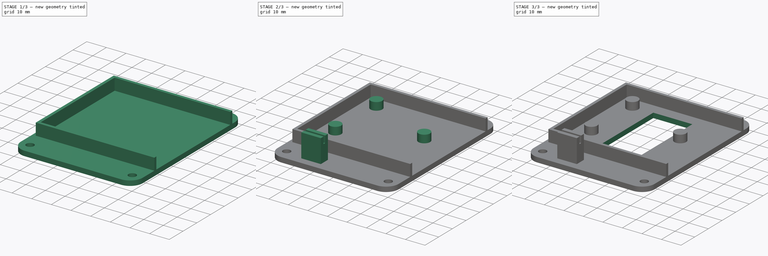
[diagram: build sequence overview — one tinted view per stage of 3, left to right]
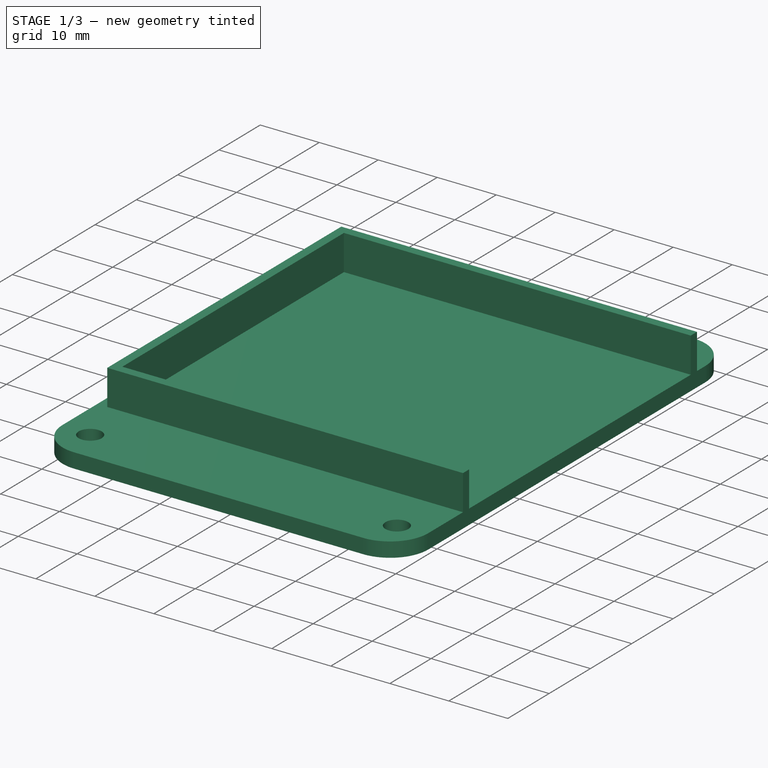
[diagram: stage 1 of 3 — iso view after this stage's code; geometry added in this stage tinted green]
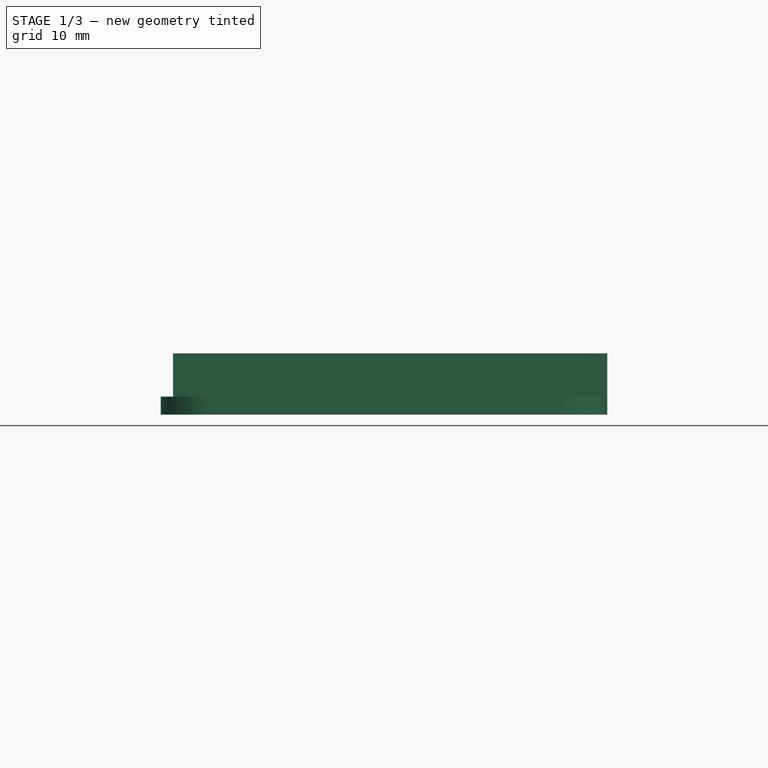
[diagram: stage 1 of 3 — front view after this stage's code; geometry added in this stage tinted green]
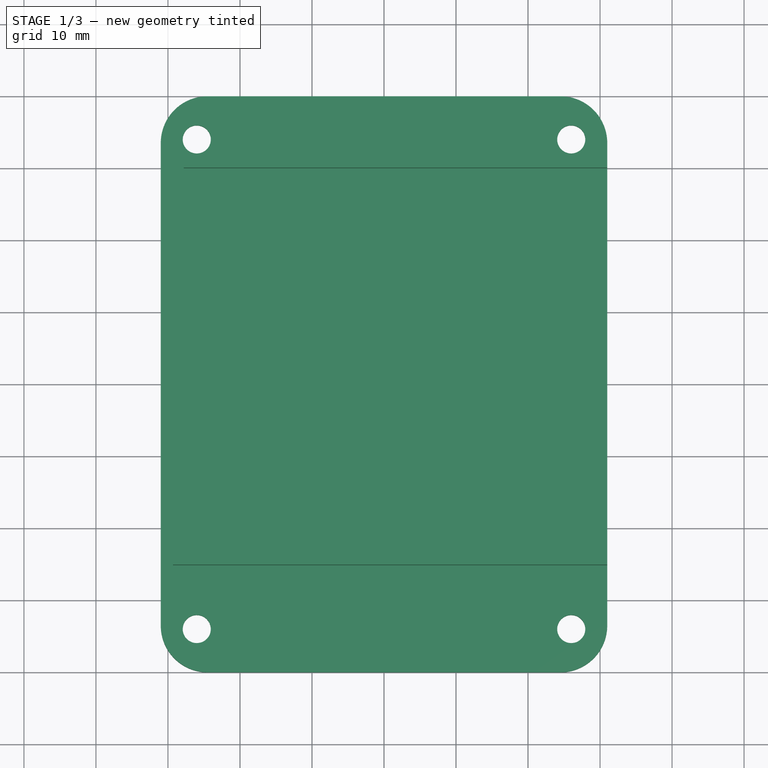
[diagram: stage 1 of 3 — top view after this stage's code; geometry added in this stage tinted green]
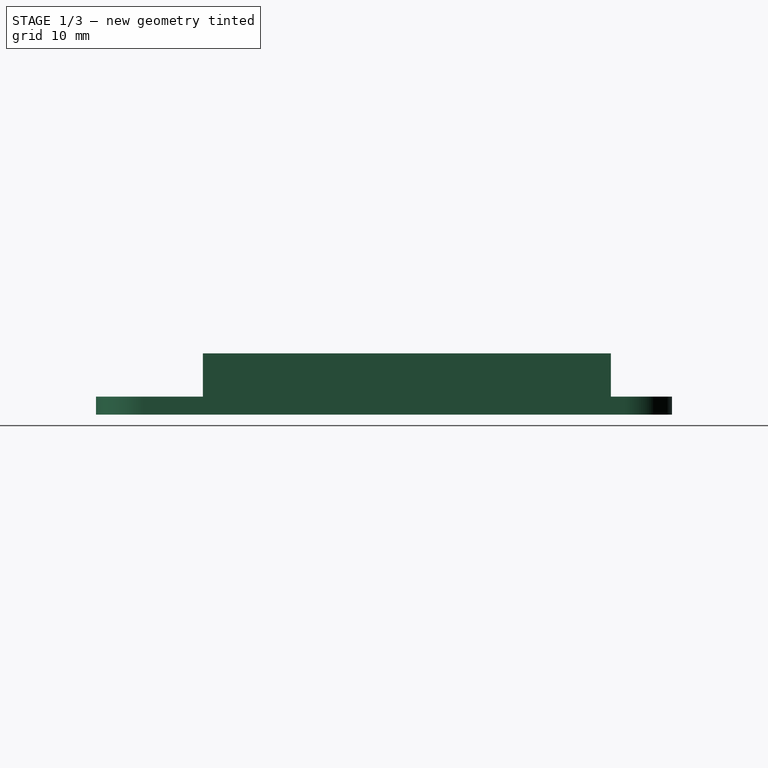
[diagram: stage 1 of 3 — right view after this stage's code; geometry added in this stage tinted green]
FCSTD DOCUMENT  (FreeCAD 0.16R4928 (Git))
Label: weather_station_holder
License: CreativeCommons Attribution-ShareAlike
LicenseURL: http://creativecommons.org/licenses/by-sa/4.0/
objects: Sketcher::SketchObject×7, PartDesign::Pad×5, PartDesign::Pocket×2
note: 21 computed .brp shape members not serialized (recipe doc carries the construction recipe); baked Part::Feature solids carry a one-line shape summary decoded from their .brp

FEATURE [Sketcher::SketchObject] Sketch
  sketch-geometry (16):
    g0: LineSegment [constr] StartX=-26 StartY=34 StartZ=0 EndX=26 EndY=34 EndZ=0
    g1: LineSegment [constr] StartX=26 StartY=34 StartZ=0 EndX=26 EndY=-34 EndZ=0
    g2: LineSegment [constr] StartX=26 StartY=-34 StartZ=0 EndX=-26 EndY=-34 EndZ=0
    g3: LineSegment [constr] StartX=-26 StartY=-34 StartZ=0 EndX=-26 EndY=34 EndZ=0
    g4: LineSegment StartX=-24.5 StartY=40 StartZ=0 EndX=24.5 EndY=40 EndZ=0
    g5: LineSegment StartX=31 StartY=33.5 StartZ=0 EndX=31 EndY=-33.5 EndZ=0
    g6: LineSegment StartX=24.5 StartY=-40 StartZ=0 EndX=-24.5 EndY=-40 EndZ=0
    g7: LineSegment StartX=-31 StartY=-33.5 StartZ=0 EndX=-31 EndY=33.5 EndZ=0
    g8: Circle CenterX=-26 CenterY=34 CenterZ=0 NormalX=0 NormalY=0 NormalZ=1 Radius=1.95
    g9: Circle CenterX=26 CenterY=34 CenterZ=0 NormalX=0 NormalY=0 NormalZ=1 Radius=1.95
    g10: Circle CenterX=26 CenterY=-34 CenterZ=0 NormalX=0 NormalY=0 NormalZ=1 Radius=1.95
    g11: Circle CenterX=-26 CenterY=-34 CenterZ=0 NormalX=0 NormalY=0 NormalZ=1 Radius=1.95
    g12: ArcOfCircle CenterX=-24.5 CenterY=33.5 CenterZ=0 NormalX=0 NormalY=0 NormalZ=1 Radius=6.5 StartAngle=1.5708 EndAngle=3.14159
    g13: ArcOfCircle CenterX=24.5 CenterY=33.5 CenterZ=0 NormalX=0 NormalY=0 NormalZ=1 Radius=6.5 StartAngle=0 EndAngle=1.5708
    g14: ArcOfCircle CenterX=-24.5 CenterY=-33.5 CenterZ=0 NormalX=0 NormalY=0 NormalZ=1 Radius=6.5 StartAngle=3.14159 EndAngle=4.71239
    g15: ArcOfCircle CenterX=24.5 CenterY=-33.5 CenterZ=0 NormalX=0 NormalY=0 NormalZ=1 Radius=6.5 StartAngle=4.71239 EndAngle=6.28319
  constraints (38):
    c: Coincident(g0,g1)
    c: Coincident(g1,g2)
    c: Coincident(g2,g3)
    c: Coincident(g3,g0)
    c: Horizontal(g0)
    c: Horizontal(g2)
    c: Vertical(g1)
    c: Vertical(g3)
    c: Symmetric(g0,g1,g-1)
    c: DistanceY(g1) = -68
    c: DistanceX(g0) = 52
    c: Horizontal(g4)
    c: Horizontal(g6)
    c: Vertical(g5)
    c: Vertical(g7)
    c: Coincident(g8,g0)
    c: Coincident(g9,g0)
    c: Coincident(g10,g1)
    c: Coincident(g11,g2)
    c: Equal(g11,g10)
    c: Equal(g10,g9)
    c: Equal(g9,g8)
    c: Radius(g9) = 1.95
    c: Tangent(g7,g12) = 1.5708
    c: Tangent(g4,g12) = 1.5708
    c: Tangent(g4,g13) = 1.5708
    c: Tangent(g5,g13) = 1.5708
    c: Tangent(g7,g14) = 1.5708
    c: Tangent(g6,g14) = 1.5708
    c: Tangent(g6,g15) = 1.5708
    c: Tangent(g5,g15) = 1.5708
    c: Equal(g12,g14)
    c: Equal(g14,g15)
    c: Equal(g15,g13)
    c: Symmetric(g12,g15,g-1)
    c: DistanceY(g4,g6) = -80
    c: DistanceX(g7,g5) = 62
    c: Radius(g12) = 6.5
FEATURE [PartDesign::Pad] Pad
  Length = 2.5
  Length2 = 100
  Sketch = -> Sketch
  Type = 0
FEATURE [Sketcher::SketchObject] Sketch001
  ExternalGeometry = -> [Pad]
  Placement = pos=(0,0,2.5) rot=(0,0,1;0rad)
  Support = -> Pad [Face14]
  sketch-geometry (9):
    g0: LineSegment StartX=-27.8 StartY=30 StartZ=0 EndX=31 EndY=30 EndZ=0
    g1: LineSegment [constr] StartX=31 StartY=30 StartZ=0 EndX=31 EndY=-23.65 EndZ=0
    g2: LineSegment StartX=31 StartY=-23.65 StartZ=0 EndX=-27.8 EndY=-23.65 EndZ=0
    g3: LineSegment StartX=-27.8 StartY=-23.65 StartZ=0 EndX=-27.8 EndY=30 EndZ=0
    g4: LineSegment StartX=31 StartY=-23.65 StartZ=0 EndX=31 EndY=-25.15 EndZ=0
    g5: LineSegment StartX=31 StartY=-25.15 StartZ=0 EndX=-29.3 EndY=-25.15 EndZ=0
    g6: LineSegment StartX=-29.3 StartY=-25.15 StartZ=0 EndX=-29.3 EndY=31.5 EndZ=0
    g7: LineSegment StartX=-29.3 StartY=31.5 StartZ=0 EndX=31 EndY=31.5 EndZ=0
    g8: LineSegment StartX=31 StartY=31.5 StartZ=0 EndX=31 EndY=30 EndZ=0
  constraints (26):
    c: Coincident(g0,g1)
    c: Coincident(g1,g2)
    c: Coincident(g2,g3)
    c: Coincident(g3,g0)
    c: Horizontal(g0)
    c: Horizontal(g2)
    c: Vertical(g1)
    c: Vertical(g3)
    c: DistanceY(g1) = -53.65
    c: DistanceX(g0) = 58.8
    c: DistanceY(g0) = 30
    c: PointOnObject(g0,g-3)
    c: Coincident(g1,g4)
    c: Coincident(g4,g5)
    c: Horizontal(g5)
    c: Coincident(g5,g6)
    c: Vertical(g6)
    c: Coincident(g6,g7)
    c: Horizontal(g7)
    c: Coincident(g7,g8)
    c: Coincident(g8,g0)
    c: Equal(g4,g8)
    c: Vertical(g8)
    c: Vertical(g4)
    c: DistanceY(g0,g7) = 1.5
    c: DistanceX(g2,g5) = -1.5
FEATURE [PartDesign::Pad] Pad001
  Length = 6
  Length2 = 100
  Sketch = -> Sketch001
  Type = 0
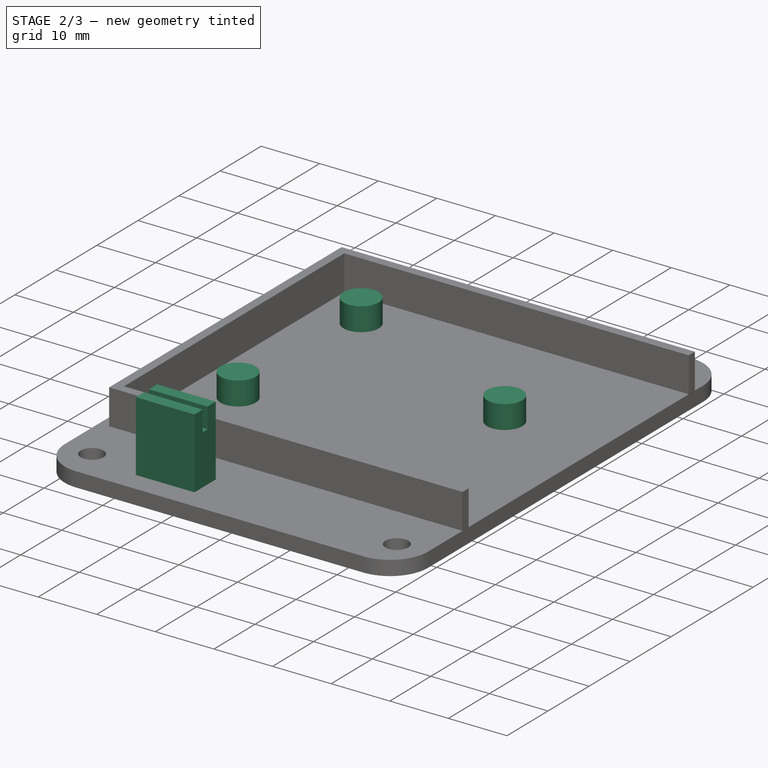
[diagram: stage 2 of 3 — iso view after this stage's code; geometry added in this stage tinted green]
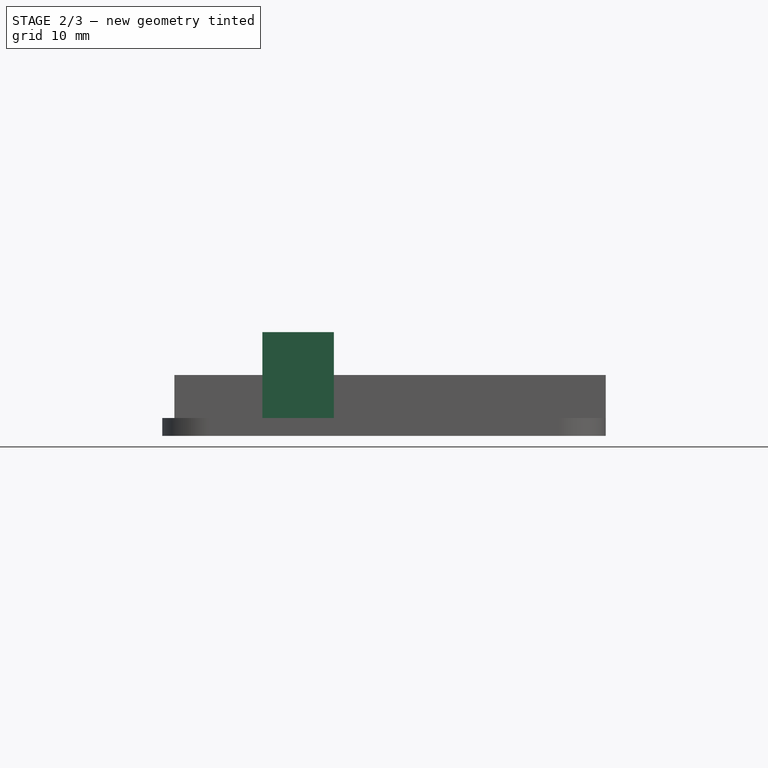
[diagram: stage 2 of 3 — front view after this stage's code; geometry added in this stage tinted green]
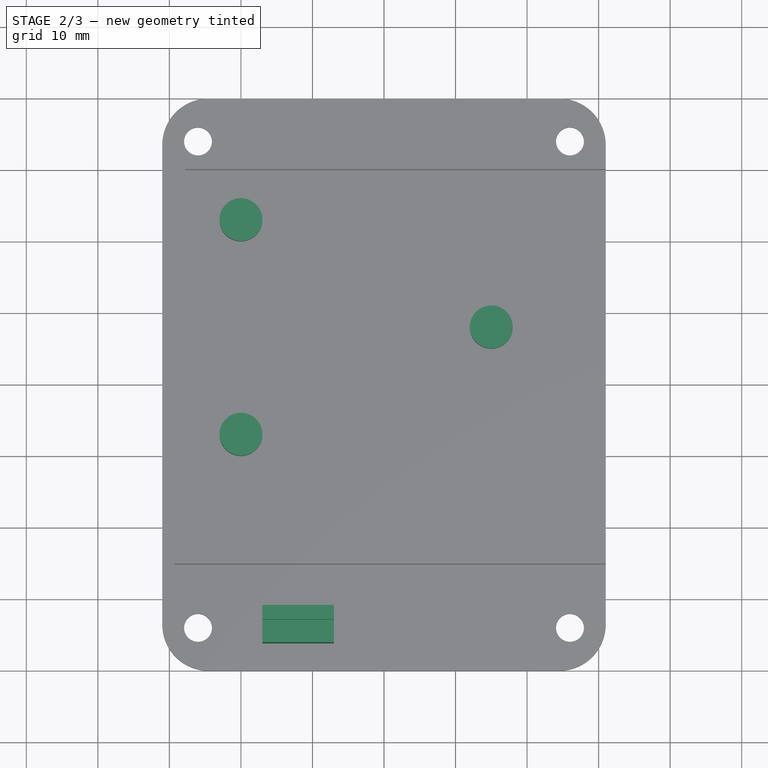
[diagram: stage 2 of 3 — top view after this stage's code; geometry added in this stage tinted green]
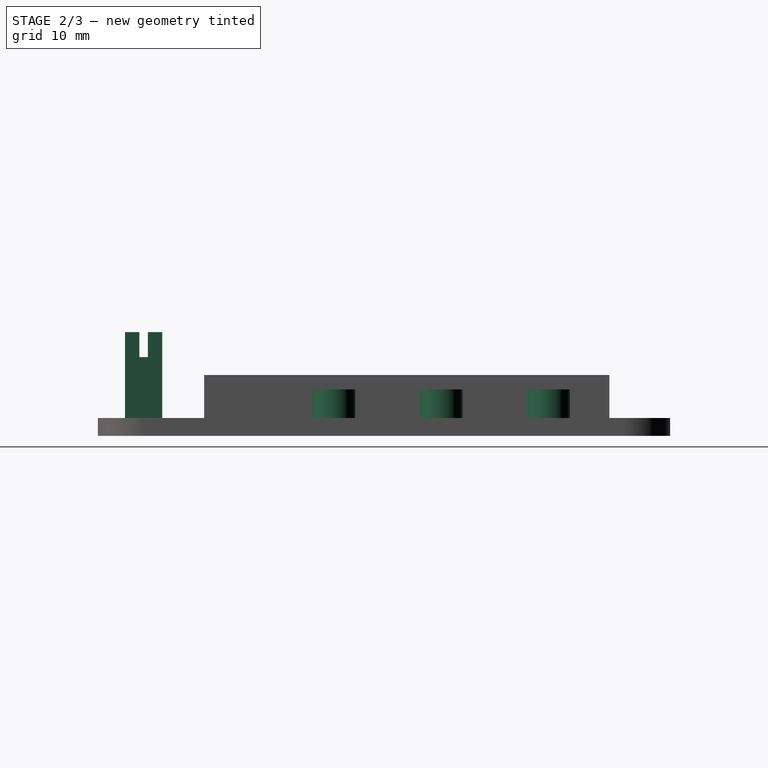
[diagram: stage 2 of 3 — right view after this stage's code; geometry added in this stage tinted green]
FEATURE [Sketcher::SketchObject] Sketch002
  Placement = pos=(0,0,2.5) rot=(0,0,1;0rad)
  Support = -> Pad001 [Face1]
  sketch-geometry (5):
    g0: Circle CenterX=-20 CenterY=23 CenterZ=0 NormalX=0 NormalY=0 NormalZ=1 Radius=3
    g1: Circle CenterX=-20 CenterY=-7 CenterZ=0 NormalX=0 NormalY=0 NormalZ=1 Radius=3
    g2: LineSegment [constr] StartX=-20 StartY=23 StartZ=0 EndX=-20 EndY=-7 EndZ=0
    g3: Circle CenterX=15 CenterY=8 CenterZ=0 NormalX=0 NormalY=0 NormalZ=1 Radius=3
    g4: LineSegment [constr] StartX=15 StartY=8 StartZ=0 EndX=-20 EndY=8 EndZ=0
  constraints (14):
    c: Coincident(g2,g0)
    c: Coincident(g2,g1)
    c: Vertical(g2)
    c: Equal(g0,g1)
    c: Equal(g1,g3)
    c: DistanceY(g2) = -30
    c: Coincident(g4,g3)
    c: Horizontal(g4)
    c: PointOnObject(g4,g2)
    c: DistanceX(g4) = -35
    c: Symmetric(g1,g0,g4)
    c: DistanceX(g4) = -20
    c: DistanceY(g4) = 8
    c: Radius(g3) = 3
FEATURE [PartDesign::Pad] Pad002
  Length = 4
  Length2 = 100
  Sketch = -> Sketch002
  Type = 0
FEATURE [Sketcher::SketchObject] Sketch003
  Placement = pos=(0,0,2.5) rot=(0,0,1;0rad)
  Support = -> Pad002 [Face7]
  sketch-geometry (9):
    g0: LineSegment StartX=-17 StartY=-34.2 StartZ=0 EndX=-7 EndY=-34.2 EndZ=0
    g1: LineSegment StartX=-7 StartY=-34.2 StartZ=0 EndX=-7 EndY=-36.2 EndZ=0
    g2: LineSegment StartX=-7 StartY=-36.2 StartZ=0 EndX=-17 EndY=-36.2 EndZ=0
    g3: LineSegment StartX=-17 StartY=-36.2 StartZ=0 EndX=-17 EndY=-34.2 EndZ=0
    g4: LineSegment StartX=-17 StartY=-31 StartZ=0 EndX=-7 EndY=-31 EndZ=0
    g5: LineSegment StartX=-7 StartY=-31 StartZ=0 EndX=-7 EndY=-33 EndZ=0
    g6: LineSegment StartX=-7 StartY=-33 StartZ=0 EndX=-17 EndY=-33 EndZ=0
    g7: LineSegment StartX=-17 StartY=-33 StartZ=0 EndX=-17 EndY=-31 EndZ=0
    g8: LineSegment [constr] StartX=-7 StartY=-33 StartZ=0 EndX=-7 EndY=-34.2 EndZ=0
  constraints (26):
    c: Coincident(g0,g1)
    c: Coincident(g1,g2)
    c: Coincident(g2,g3)
    c: Coincident(g3,g0)
    c: Horizontal(g0)
    c: Horizontal(g2)
    c: Vertical(g1)
    c: Vertical(g3)
    c: Coincident(g4,g5)
    c: Coincident(g5,g6)
    c: Coincident(g6,g7)
    c: Coincident(g7,g4)
    c: Horizontal(g4)
    c: Horizontal(g6)
    c: Vertical(g5)
    c: Vertical(g7)
    c: Equal(g2,g4)
    c: Equal(g3,g7)
    c: DistanceY(g5,g0) = -1.2
    c: DistanceY(g5) = -2
    c: DistanceX(g4) = 10
    c: DistanceY(g4) = -31
    c: Coincident(g8,g5)
    c: Coincident(g8,g0)
    c: Vertical(g8)
    c: DistanceX(g4) = -7
FEATURE [PartDesign::Pad] Pad003
  Length = 12
  Length2 = 100
  Sketch = -> Sketch003
  Type = 0
FEATURE [Sketcher::SketchObject] Sketch004
  ExternalGeometry = -> [Pad003]
  Placement = pos=(0,0,2.5) rot=(0,0,1;0rad)
  Support = -> Pad003 [Face7]
  sketch-geometry (4):
    g0: LineSegment StartX=-17 StartY=-34.2 StartZ=0 EndX=-7 EndY=-34.2 EndZ=0
    g1: LineSegment StartX=-7 StartY=-34.2 StartZ=0 EndX=-7 EndY=-31 EndZ=0
    g2: LineSegment StartX=-7 StartY=-31 StartZ=0 EndX=-17 EndY=-31 EndZ=0
    g3: LineSegment StartX=-17 StartY=-31 StartZ=0 EndX=-17 EndY=-34.2 EndZ=0
  constraints (10):
    c: Coincident(g0,g1)
    c: Coincident(g1,g2)
    c: Coincident(g2,g3)
    c: Coincident(g3,g0)
    c: Horizontal(g0)
    c: Horizontal(g2)
    c: Vertical(g1)
    c: Vertical(g3)
    c: Coincident(g0,g-3)
    c: Coincident(g1,g-4)
FEATURE [PartDesign::Pad] Pad004
  Length = 8.5
  Length2 = 100
  Sketch = -> Sketch004
  Type = 0
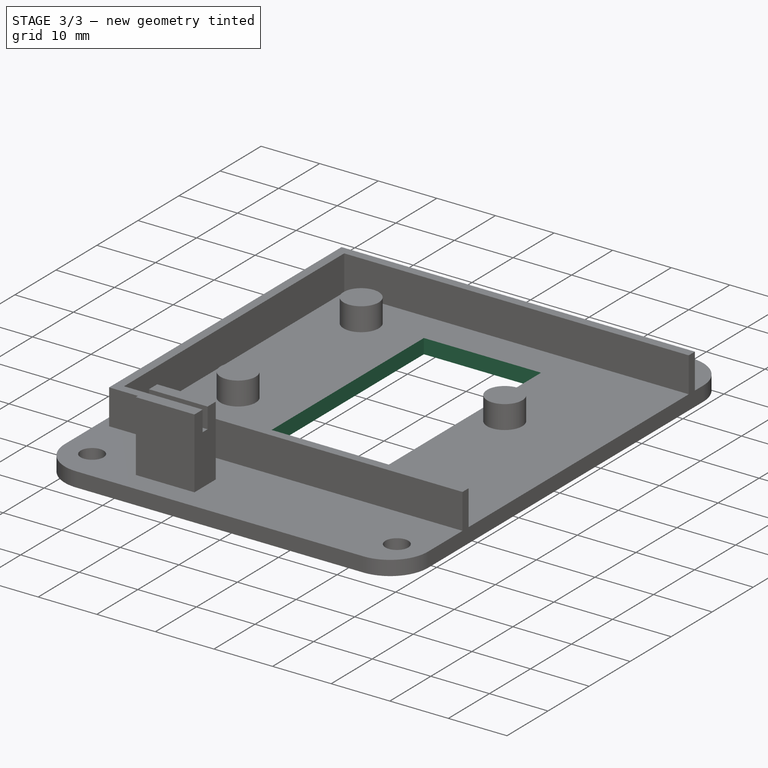
[diagram: stage 3 of 3 — iso view after this stage's code; geometry added in this stage tinted green]
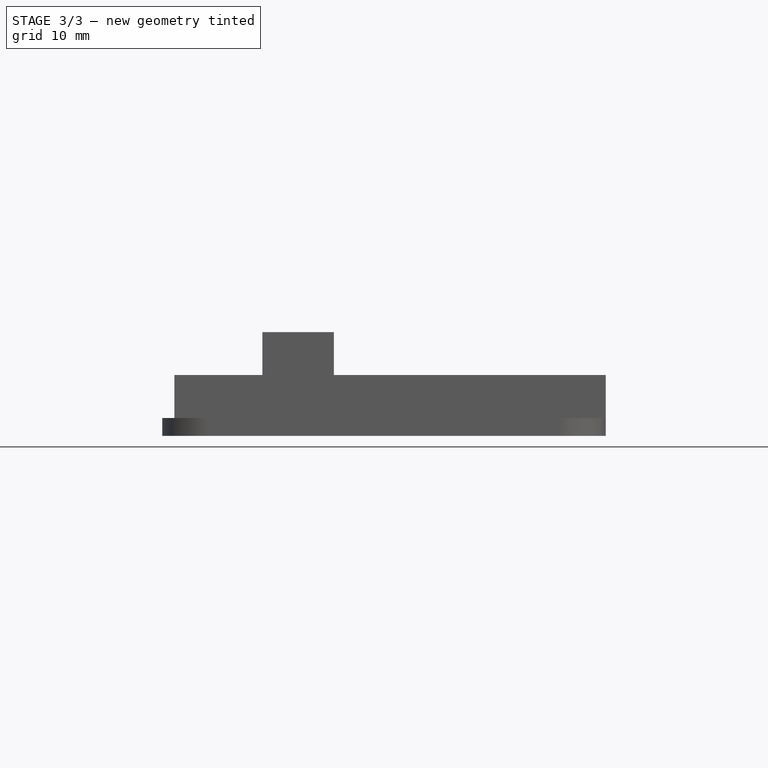
[diagram: stage 3 of 3 — front view after this stage's code; geometry added in this stage tinted green]
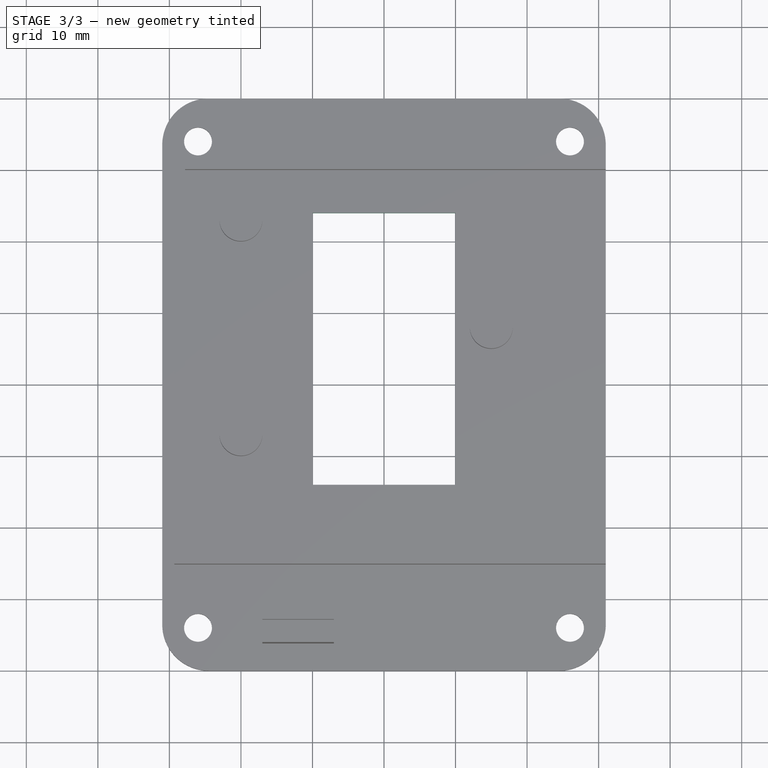
[diagram: stage 3 of 3 — top view after this stage's code; geometry added in this stage tinted green]
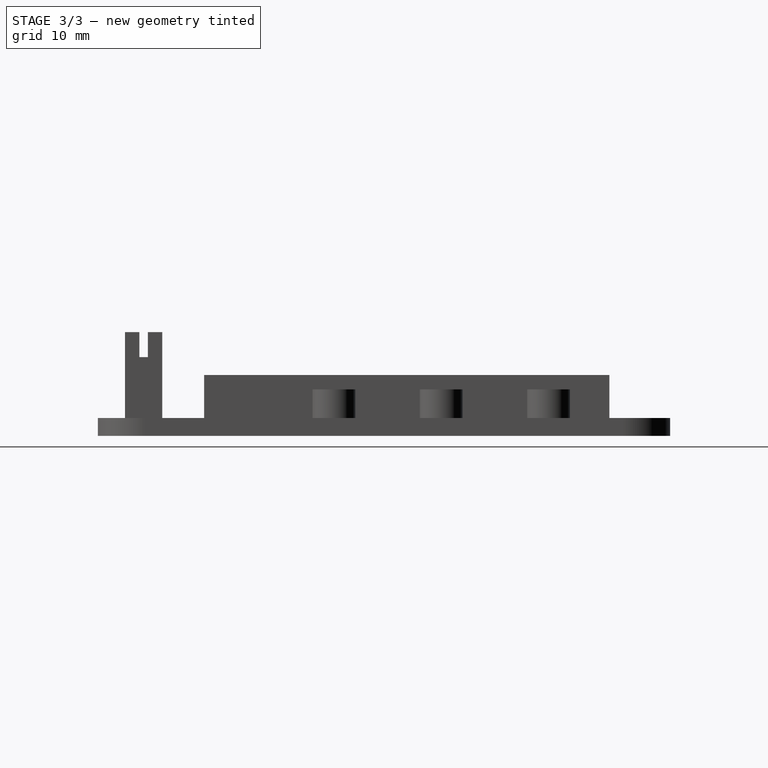
[diagram: stage 3 of 3 — right view after this stage's code; geometry added in this stage tinted green]
FEATURE [Sketcher::SketchObject] Sketch005
  Placement = pos=(0,0,2.5) rot=(0,0,1;0rad)
  Support = -> Pad004 [Face5]
  sketch-geometry (4):
    g0: LineSegment StartX=-10 StartY=24 StartZ=0 EndX=10 EndY=24 EndZ=0
    g1: LineSegment StartX=10 StartY=24 StartZ=0 EndX=10 EndY=-14 EndZ=0
    g2: LineSegment StartX=10 StartY=-14 StartZ=0 EndX=-10 EndY=-14 EndZ=0
    g3: LineSegment StartX=-10 StartY=-14 StartZ=0 EndX=-10 EndY=24 EndZ=0
  constraints (12):
    c: Coincident(g0,g1)
    c: Coincident(g1,g2)
    c: Coincident(g2,g3)
    c: Coincident(g3,g0)
    c: Horizontal(g0)
    c: Horizontal(g2)
    c: Vertical(g1)
    c: Vertical(g3)
    c: DistanceY(g0) = 24
    c: DistanceX(g0) = 20
    c: DistanceX(g0) = -10
    c: DistanceY(g3) = 38
FEATURE [PartDesign::Pocket] Pocket
  Length = 5
  Sketch = -> Sketch005
  Type = 1
FEATURE [Sketcher::SketchObject] Sketch006
  ExternalGeometry = -> [Pocket]
  Placement = pos=(0,0,14.5) rot=(0,0,1;0rad)
  Support = -> Pocket [Face6]
  sketch-geometry (4):
    g0: LineSegment StartX=-17 StartY=-31 StartZ=0 EndX=-17 EndY=-31 EndZ=0
    g1: LineSegment StartX=-17 StartY=-31 StartZ=0 EndX=-17 EndY=-34.2 EndZ=0
    g2: LineSegment StartX=-17 StartY=-34.2 StartZ=0 EndX=-17 EndY=-34.2 EndZ=0
    g3: LineSegment StartX=-17 StartY=-34.2 StartZ=0 EndX=-17 EndY=-31 EndZ=0
  constraints (10):
    c: Coincident(g0,g1)
    c: Coincident(g1,g2)
    c: Coincident(g2,g3)
    c: Coincident(g3,g0)
    c: Horizontal(g0)
    c: Horizontal(g2)
    c: Vertical(g1)
    c: Vertical(g3)
    c: Coincident(g0,g-4)
    c: Coincident(g1,g-3)
FEATURE [PartDesign::Pocket] Pocket001
  Length = 3.5
  Sketch = -> Sketch006
  Type = 0
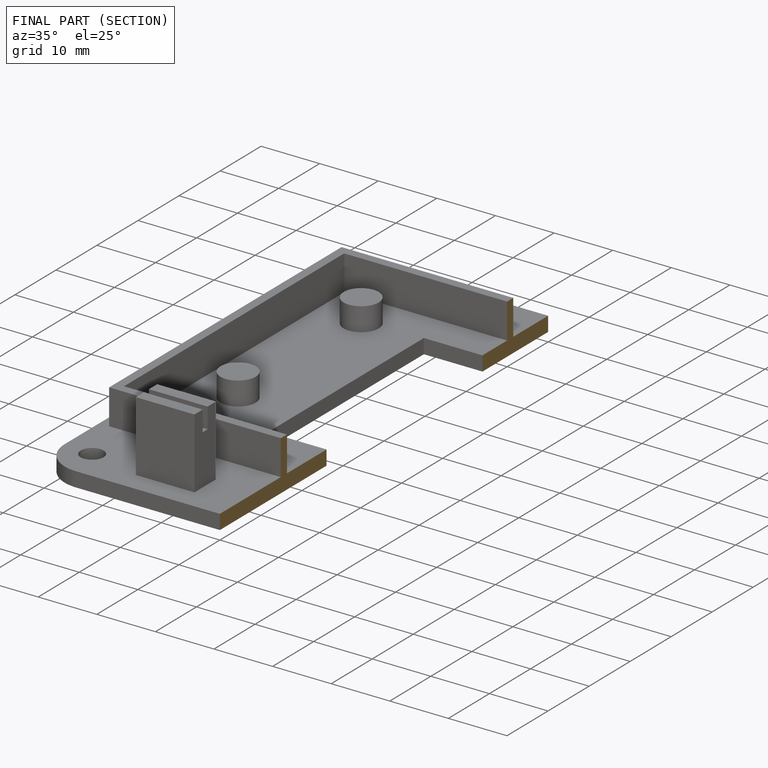
[diagram: finished part — half-section view (interior)]
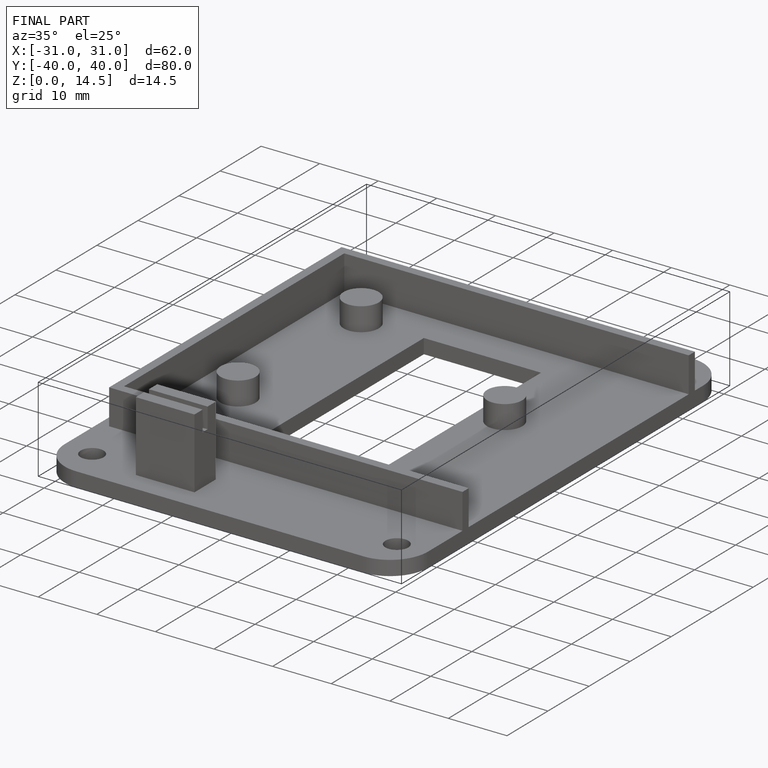
[diagram: finished part — iso view with bounding-box wireframe]
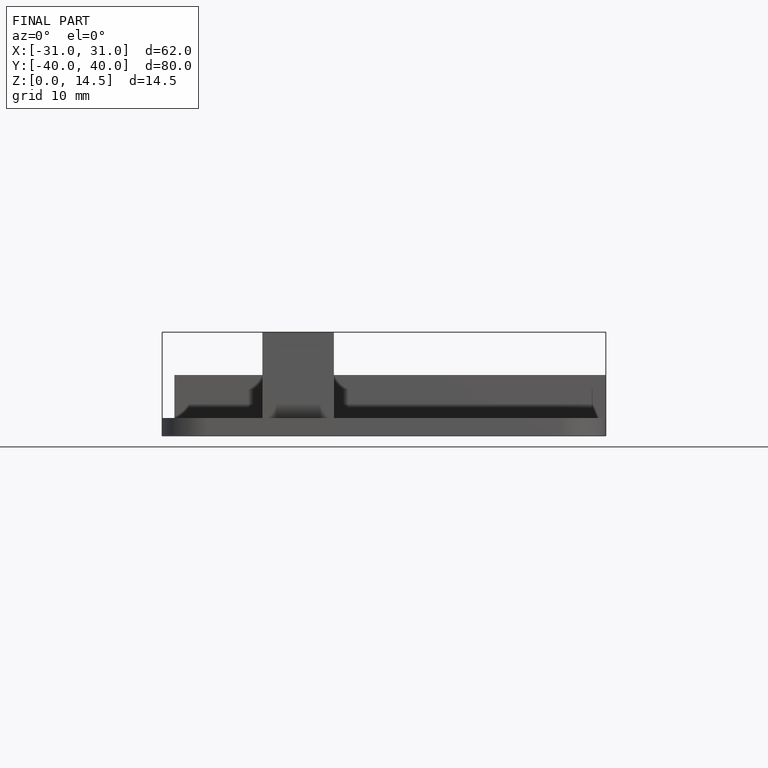
[diagram: finished part — front view with bounding-box wireframe]
